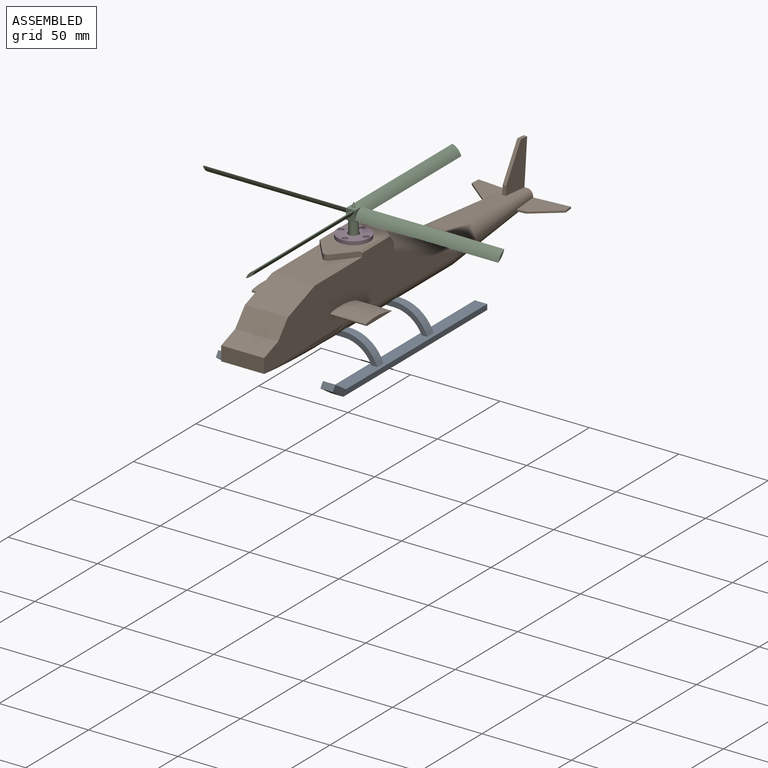
[diagram: assembled view]
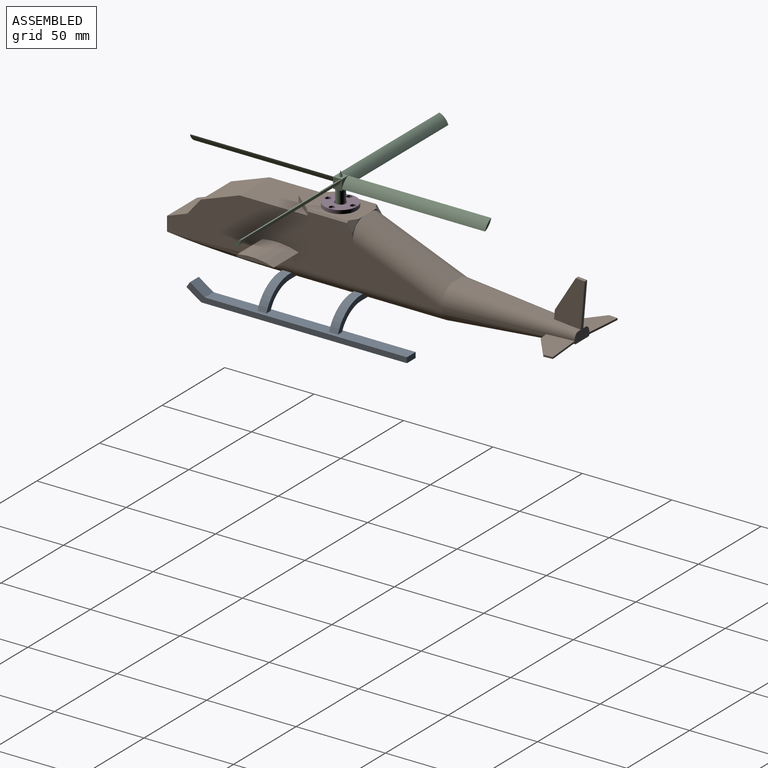
[diagram: assembled view, second angle]
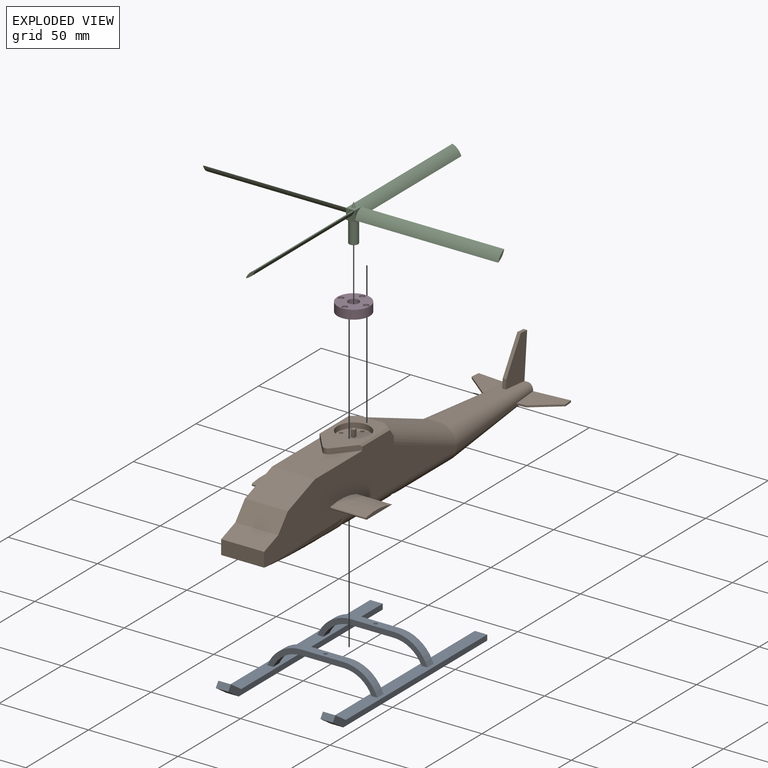
[diagram: exploded view]
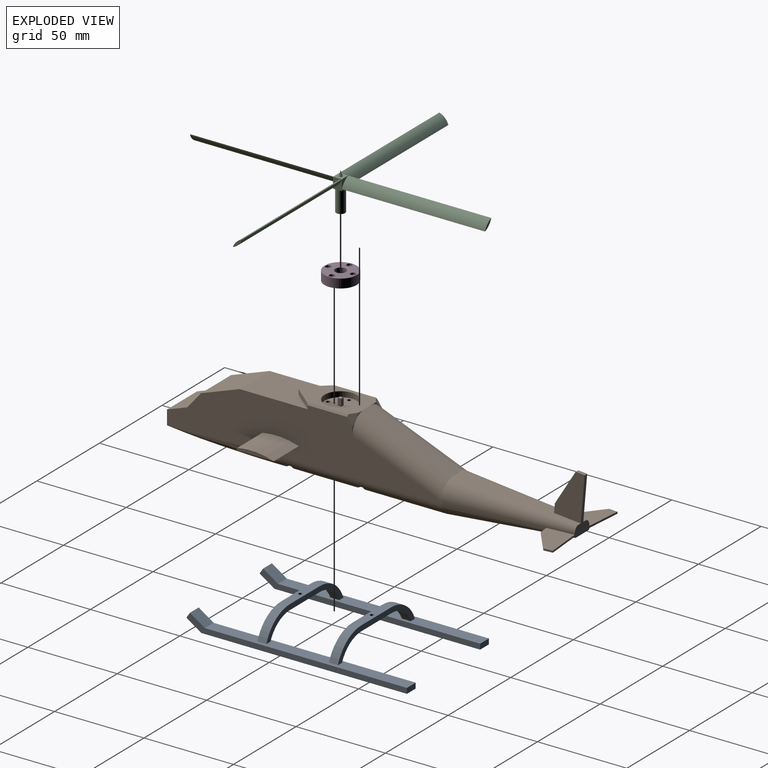
[diagram: exploded view, second angle]
ASSEMBLY  parts=4 mates=3
PART A: 38 faces, bbox 65.5x123.3x16 mm
  f0: cylinder r=20mm len=18.74mm, axis (0,-1,0), area 121.3mm2, adj f1,f6,f7,f8
  f1: plane 24x5mm, normal (0,0,1), area 116.9mm2, adj f0,f2,f6,f7,f35
  f2: cylinder r=20mm len=18.74mm, axis (0,-1,0), area 121.3mm2, adj f1,f6,f7,f9
  f3: cylinder r=17mm len=15.49mm, axis (0,-1,0), area 97.4mm2, adj f4,f6,f7,f9
  f4: plane 24x5mm, normal (0,0,-1), area 112.9mm2, adj f3,f5,f6,f7,f37
  f5: cylinder r=17mm len=15.49mm, axis (0,-1,0), area 97.4mm2, adj f4,f6,f7,f8
  f6: plane 61.47x13mm, normal (0,1,0), area 203.3mm2, adj f0,f1,f2,f3,f4,f5,f8,f9
  f7: plane 61.47x13mm, normal (0,-1,0), area 203.3mm2, adj f0,f1,f2,f3,f4,f5,f8,f9
  f8: plane 113x7mm, normal (0,0,1), area 758.6mm2, adj f0,f5,f6,f7,f10,f15,f16,f17
  f9: plane 113x7mm, normal (0,0,1), area 758.6mm2, adj f2,f3,f6,f7,f12,f13,f16,f17
  f10: cylinder r=20mm len=18.74mm, axis (0,1,0), area 121.3mm2, adj f8,f11,f16,f17
  f11: plane 24x5mm, normal (0,0,1), area 116.9mm2, adj f10,f12,f16,f17,f32
  f12: cylinder r=20mm len=18.74mm, axis (0,1,0), area 121.3mm2, adj f9,f11,f16,f17
  f13: cylinder r=17mm len=15.49mm, axis (0,1,0), area 97.4mm2, adj f9,f14,f16,f17
  f14: plane 24x5mm, normal (0,0,-1), area 112.9mm2, adj f13,f15,f16,f17,f34
  f15: cylinder r=17mm len=15.49mm, axis (0,1,0), area 97.4mm2, adj f8,f14,f16,f17
  f16: plane 61.47x13mm, normal (0,-1,0), area 203.3mm2, adj f8,f9,f10,f11,f12,f13,f14,f15
  f17: plane 61.47x13mm, normal (0,1,0), area 203.3mm2, adj f8,f9,f10,f11,f12,f13,f14,f15
  f18: plane 123.32x8.55mm, normal (-1,0,0), area 378.1mm2, adj f8,f19,f21,f26,f27,f28
  f19: plane 115x7mm, normal (0,0,-1), area 805mm2, adj f18,f20,f21,f26
  f20: plane 123.32x8.55mm, normal (1,0,0), area 378.1mm2, adj f8,f19,f21,f26,f27,f28
  f21: plane 7x3mm, normal (0,1,0), area 21mm2, adj f8,f18,f19,f20
  f22: plane 115x7mm, normal (0,0,-1), area 805mm2, adj f23,f24,f25,f30
  f23: plane 123.32x8.55mm, normal (1,0,0), area 378.1mm2, adj f9,f22,f25,f29,f30,f31
  f24: plane 123.32x8.55mm, normal (-1,0,0), area 378.1mm2, adj f9,f22,f25,f29,f30,f31
  f25: plane 7x3mm, normal (0,1,0), area 21mm2, adj f9,f22,f23,f24
  f26: plane 8.32x7mm, normal (0,-0.55,-0.83), area 70mm2, adj f18,f19,f20,f28
  f27: plane 8.32x7mm, normal (0,0.55,0.83), area 70mm2, adj f8,f18,f20,f28
  f28: plane 7x3mm, normal (0,-0.83,0.55), area 25.2mm2, adj f18,f20,f26,f27
  f29: plane 8.32x7mm, normal (0,0.55,0.83), area 70mm2, adj f9,f23,f24,f31
  f30: plane 8.32x7mm, normal (0,-0.55,-0.83), area 70mm2, adj f22,f23,f24,f31
  f31: plane 7x3mm, normal (0,-0.83,0.55), area 25.2mm2, adj f23,f24,f29,f30
  f32: cylinder r=1mm len=2mm, axis (0,0,-1), area 12.6mm2, adj f11,f33
  f33: plane 3x3mm, normal (0,0,-1), area 3.9mm2, adj f32,f34
  f34: cylinder r=1.5mm len=3mm, axis (0,0,-1), area 9.4mm2, adj f14,f33
  f35: cylinder r=1mm len=2mm, axis (0,0,-1), area 12.6mm2, adj f1,f36
  f36: plane 3x3mm, normal (0,0,-1), area 3.9mm2, adj f35,f37
  f37: cylinder r=1.5mm len=3mm, axis (0,0,-1), area 9.4mm2, adj f4,f36
PART B: 87 faces, bbox 65.5x239.2x40.5 mm
  f0: plane 35x10mm, normal (0,0,-1), area 350mm2, adj f2,f3,f64,f68
  f1: plane 45x10mm, normal (0,0,-1), area 450mm2, adj f2,f3,f33,f65
  f2: cylinder r=7mm len=90mm, axis (0,-1,0), area 922.2mm2, adj f0,f1,f15,f16,f32,f64,f65,f66
  f3: cylinder r=7mm len=90mm, axis (0,-1,0), area 922.2mm2, adj f0,f1,f26,f27,f34,f64,f65,f66
  f4: plane 70x6.12mm, normal (-1,0.09,0), area 76.8mm2, adj f26,f34,f35,f37,f58,f61
  f5: plane 70x6.12mm, normal (0,0.09,1), area 391.6mm2, adj f23,f35,f36,f37,f49,f50,f51
  f6: plane 70x6.12mm, normal (1,0.09,0), area 76.8mm2, adj f15,f32,f36,f37,f42,f45
  f7: plane 38.05x24mm, normal (0,0,1), area 742.4mm2, adj f9,f15,f17,f18,f26,f28
  f8: plane 18x18mm, normal (0,0,1), area 237.9mm2, adj f19,f75,f77,f79,f81,f82,f83,f84
  f9: plane 24x21.61mm, normal (0,-0.34,0.94), area 552mm2, adj f7,f10,f15,f26
  f10: plane 24x9.19mm, normal (0,-0.77,0.64), area 288mm2, adj f9,f11,f15,f26
  f11: plane 24x11.28mm, normal (0,-0.34,0.94), area 288mm2, adj f10,f12,f15,f26
  f12: plane 24x8mm, normal (0,-1,0), area 192mm2, adj f11,f13,f15,f26
  f13: cylinder r=350mm len=63.65mm, axis (-1,0,0), area 1088.2mm2, adj f12,f16,f27,f67
  f14: plane 11.21x10.51mm, normal (0,1,0), area 5mm2, adj f15,f20,f22,f24
  f15: plane 153.65x31.31mm, normal (1,0,0), area 3126.9mm2, adj f2,f6,f7,f9,f10,f11,f12,f14
  f16: bspline ~63.65x7mm, area 424.1mm2, adj f2,f13,f15,f67
  f17: cylinder r=2.5mm len=3.84mm, axis (0,0,-1), area 13.1mm2, adj f7,f18,f20,f28
  f18: plane 12.1x10.08mm, normal (0.77,-0.64,0), area 46.5mm2, adj f7,f15,f17,f20,f21
  f19: cylinder r=9mm len=18mm, axis (0,0,-1), area 169.6mm2, adj f8,f20
  f20: plane 38x22mm, normal (0,0,1), area 452.4mm2, adj f14,f17,f18,f19,f21,f22,f23,f25
  f21: plane 23.2x1mm, normal (0.71,0,0.71), area 32mm2, adj f15,f18,f20,f22
  f22: plane 5.24x5.24mm, normal (0.5,0.71,0.5), area 18.7mm2, adj f14,f15,f20,f21
  f23: plane 50x20mm, normal (0,0.37,0.93), area 323.1mm2, adj f5,f20,f24,f31
  f24: cylinder r=9mm len=56.69mm, axis (0,0.93,-0.37), area 761.3mm2, adj f14,f15,f23,f36
  f25: plane 11.21x10.51mm, normal (0,1,0), area 5mm2, adj f20,f26,f30,f31
  f26: plane 153.65x31.31mm, normal (-1,0,0), area 3126.9mm2, adj f3,f4,f7,f9,f10,f11,f12,f25
  f27: bspline ~63.65x7mm, area 424.1mm2, adj f3,f13,f26,f67
  f28: plane 12.1x10.08mm, normal (-0.77,-0.64,0), area 46.5mm2, adj f7,f17,f20,f26,f29
  f29: plane 23.2x1mm, normal (-0.71,0,0.71), area 32mm2, adj f20,f26,f28,f30
  f30: plane 5.24x5.24mm, normal (-0.5,0.71,0.5), area 18.7mm2, adj f20,f25,f26,f29
  f31: cylinder r=9mm len=56.69mm, axis (0,0.93,-0.37), area 761.3mm2, adj f23,f25,f26,f35
  f32: cone r=7mm half-angle=5deg, axis (0,-1,0), area 434.6mm2, adj f2,f6,f33,f37,f43
  f33: plane 70x10mm, normal (0,0.09,-1), area 702.7mm2, adj f1,f32,f34,f37
  f34: cone r=7mm half-angle=5deg, axis (0,-1,0), area 434.6mm2, adj f3,f4,f33,f37,f59
  f35: bspline ~84x12.21mm, area 694mm2, adj f4,f5,f31,f37
  f36: bspline ~84x12.21mm, area 694mm2, adj f5,f6,f24,f37
  f37: plane 12.56x6.56mm, normal (0,1,0), area 62.8mm2, adj f4,f5,f6,f32,f33,f34,f35,f36
  f38: cylinder r=0.7mm len=20mm, axis (-1,0,0), area 41.4mm2, adj f15,f39,f40,f41
  f39: plane 20x20mm, normal (0,0,-1), area 400mm2, adj f15,f38,f40,f41
  f40: cylinder r=40mm len=20.13mm, axis (-1,0,0), area 408mm2, adj f15,f38,f39,f41
  f41: plane 20.7x2.08mm, normal (1,0,0), area 32mm2, adj f38,f39,f40
  f42: plane 4.98x1mm, normal (0.09,-1,0), area 5mm2, adj f6,f43,f45,f47
  f43: plane 20.36x16.69mm, normal (0,0,-1), area 225mm2, adj f32,f42,f44,f46,f47
  f44: plane 19.92x1.74mm, normal (-0.09,1,0), area 20mm2, adj f37,f43,f45,f46
  f45: plane 20.36x16.69mm, normal (0,0,1), area 225mm2, adj f6,f42,f44,f46,f47
  f46: plane 4.98x1mm, normal (1,0.09,0), area 5mm2, adj f43,f44,f45,f47
  f47: plane 14.07x11.27mm, normal (0.63,-0.78,0), area 18mm2, adj f42,f43,f45,f46
  f48: plane 24.91x2.18mm, normal (0,1,-0.09), area 50mm2, adj f37,f49,f51,f52
  f49: plane 25.34x17.12mm, normal (-1,0,0), area 275mm2, adj f5,f48,f50,f52,f53
  f50: plane 4.98x2mm, normal (0,-1,0.09), area 10mm2, adj f5,f49,f51,f53
  f51: plane 25.34x17.12mm, normal (1,0,0), area 275mm2, adj f5,f48,f50,f52,f53
  f52: plane 4.98x2mm, normal (0,0.09,1), area 10mm2, adj f48,f49,f51,f53
  f53: plane 19.05x11.71mm, normal (0,-0.85,0.52), area 44.7mm2, adj f49,f50,f51,f52
  f54: plane 20.7x2.08mm, normal (-1,0,0), area 32mm2, adj f55,f56,f57
  f55: cylinder r=40mm len=20.13mm, axis (1,0,0), area 408mm2, adj f26,f54,f56,f57
  f56: plane 20x20mm, normal (0,0,-1), area 400mm2, adj f26,f54,f55,f57
  f57: cylinder r=0.7mm len=20mm, axis (1,0,0), area 41.4mm2, adj f26,f54,f55,f56
  f58: plane 4.98x1mm, normal (-0.09,-1,0), area 5mm2, adj f4,f59,f61,f63
  f59: plane 20.36x16.69mm, normal (0,0,-1), area 225mm2, adj f34,f58,f60,f62,f63
  f60: plane 19.92x1.74mm, normal (0.09,1,0), area 20mm2, adj f37,f59,f61,f62
  f61: plane 20.36x16.69mm, normal (0,0,1), area 225mm2, adj f4,f58,f60,f62,f63
  f62: plane 4.98x1mm, normal (-1,0.09,0), area 5mm2, adj f59,f60,f61,f63
  f63: plane 14.07x11.27mm, normal (-0.63,-0.78,0), area 18mm2, adj f58,f59,f61,f62
  f64: plane 21.49x3mm, normal (0,1,0), area 54.2mm2, adj f0,f2,f3,f66
  f65: plane 21.49x3mm, normal (0,-1,0), area 54.2mm2, adj f1,f2,f3,f66
  f66: plane 21.49x5mm, normal (0,0,-1), area 104.3mm2, adj f2,f3,f64,f65,f73
  f67: plane 21.75x3.26mm, normal (0,1,0), area 54.2mm2, adj f13,f16,f27,f69
  f68: plane 21.49x3mm, normal (0,-1,0), area 54.2mm2, adj f0,f2,f3,f69
  f69: plane 21.49x5mm, normal (0,0,-1), area 104.3mm2, adj f2,f3,f67,f68,f71
  f70: cone r=0mm half-angle=59deg, axis (0,0,-1), area 3.7mm2, adj f71
  f71: cylinder r=1mm len=4mm, axis (0,0,-1), area 25.1mm2, adj f69,f70
  f72: cone r=0mm half-angle=59deg, axis (0,0,-1), area 3.7mm2, adj f73
  f73: cylinder r=1mm len=4mm, axis (0,0,-1), area 25.1mm2, adj f66,f72
  f74: cone r=0mm half-angle=59deg, axis (0,0,1), area 3.7mm2, adj f75
  f75: cylinder r=1mm len=4mm, axis (0,0,1), area 25.1mm2, adj f8,f74
  f76: cone r=0mm half-angle=59deg, axis (0,0,1), area 3.7mm2, adj f77
  f77: cylinder r=1mm len=4mm, axis (0,0,1), area 25.1mm2, adj f8,f76
  f78: cone r=0mm half-angle=59deg, axis (0,0,1), area 3.7mm2, adj f79
  f79: cylinder r=1mm len=4mm, axis (0,0,1), area 25.1mm2, adj f8,f78
  f80: cone r=0mm half-angle=59deg, axis (0,0,1), area 3.7mm2, adj f81
  f81: cylinder r=1mm len=4mm, axis (0,0,1), area 25.1mm2, adj f8,f80
  f82: plane 4x2mm, normal (0,1,0), area 8mm2, adj f8,f83,f85,f86
  f83: plane 4x2mm, normal (-1,0,0), area 8mm2, adj f8,f82,f84,f86
  f84: plane 4x2mm, normal (0,-1,0), area 8mm2, adj f8,f83,f85,f86
  f85: plane 4x2mm, normal (1,0,0), area 8mm2, adj f8,f82,f84,f86
  f86: plane 2x2mm, normal (0,0,1), area 4mm2, adj f82,f83,f84,f85
PART C: 33 faces, bbox 165x165x21 mm
  f0: plane 5x5mm, normal (0,0,-1), area 15.6mm2, adj f18,f28,f29,f30,f31
  f1: plane 2.5x2.5mm, normal (0,0,-1), area 1.3mm2, adj f4,f5,f18
  f2: plane 2.5x2.5mm, normal (0,0,-1), area 1.3mm2, adj f4,f11,f18
  f3: plane 2.5x2.5mm, normal (0,0,-1), area 1.3mm2, adj f7,f11,f18
  f4: plane 6x5mm, normal (0,1,0), area 13.6mm2, adj f1,f2,f5,f9,f11,f27
  f5: plane 6x5mm, normal (-1,0,0), area 13.6mm2, adj f1,f4,f7,f10,f13,f23
  f6: plane 5x5mm, normal (1,0,0), area 8.6mm2, adj f7,f12,f20
  f7: plane 6x5mm, normal (0,-1,0), area 13.6mm2, adj f3,f5,f6,f11,f13,f14
  f8: plane 5x5mm, normal (0,1,0), area 8.6mm2, adj f11,f12,f26
  f9: plane 5x5mm, normal (-1,0,0), area 8.6mm2, adj f4,f12,f24
  f10: plane 5x5mm, normal (0,-1,0), area 8.6mm2, adj f5,f12,f15
  f11: plane 6x5mm, normal (1,0,0), area 13.6mm2, adj f2,f3,f4,f7,f8,f21
  f12: plane 5x5mm, normal (0,0,1), area 21.9mm2, adj f6,f8,f9,f10,f17
  f13: plane 2.5x2.5mm, normal (0,0,-1), area 1.3mm2, adj f5,f7,f18
  f14: cylinder r=8mm len=80mm, axis (0,1,0), area 585.9mm2, adj f7,f15,f16
  f15: cylinder r=8mm len=80mm, axis (0,1,0), area 585.9mm2, adj f10,f14,f16
  f16: plane 5x5mm, normal (0,-1,0), area 7.8mm2, adj f14,f15
  f17: cone r=1mm half-angle=18.4deg, axis (0,0,-1), area 9.9mm2, adj f12
  f18: cylinder r=2.5mm len=12mm, axis (0,0,1), area 188.5mm2, adj f0,f1,f2,f3,f13
  f19: plane 5x5mm, normal (1,0,0), area 7.8mm2, adj f20,f21
  f20: cylinder r=8mm len=80mm, axis (-1,0,0), area 585.9mm2, adj f6,f19,f21
  f21: cylinder r=8mm len=80mm, axis (-1,0,0), area 585.9mm2, adj f11,f19,f20
  f22: plane 5x5mm, normal (-1,0,0), area 7.8mm2, adj f23,f24
  f23: cylinder r=8mm len=80mm, axis (1,0,0), area 585.9mm2, adj f5,f22,f24
  f24: cylinder r=8mm len=80mm, axis (1,0,0), area 585.9mm2, adj f9,f22,f23
  f25: plane 5x5mm, normal (0,1,0), area 7.8mm2, adj f26,f27
  f26: cylinder r=8mm len=80mm, axis (0,-1,0), area 585.9mm2, adj f8,f25,f27
  f27: cylinder r=8mm len=80mm, axis (0,-1,0), area 585.9mm2, adj f4,f25,f26
  f28: plane 4x2mm, normal (0,1,0), area 8mm2, adj f0,f29,f31,f32
  f29: plane 4x2mm, normal (1,0,0), area 8mm2, adj f0,f28,f30,f32
  f30: plane 4x2mm, normal (0,-1,0), area 8mm2, adj f0,f29,f31,f32
  f31: plane 4x2mm, normal (-1,0,0), area 8mm2, adj f0,f28,f30,f32
  f32: plane 2x2mm, normal (0,0,-1), area 4mm2, adj f28,f29,f30,f31
PART D: 18 faces, bbox 18x18x5 mm
  f0: cylinder r=9mm len=18mm, axis (0,0,-1), area 282.7mm2, adj f1,f2
  f1: plane 18x18mm, normal (0,0,1), area 197.9mm2, adj f0,f3,f8,f11,f14,f17
  f2: plane 18x18mm, normal (0,0,-1), area 163.4mm2, adj f0,f4,f6,f9,f12,f15
  f3: cylinder r=3mm len=6mm, axis (0,0,-1), area 37.7mm2, adj f1,f5
  f4: cylinder r=5mm len=10mm, axis (0,0,-1), area 94.2mm2, adj f2,f5
  f5: plane 10x10mm, normal (0,0,-1), area 50.3mm2, adj f3,f4
  f6: cylinder r=1mm len=4mm, axis (0,0,1), area 25.1mm2, adj f2,f7
  f7: plane 3x3mm, normal (0,0,1), area 3.9mm2, adj f6,f8
  f8: cylinder r=1.5mm len=3mm, axis (0,0,1), area 9.4mm2, adj f1,f7
  f9: cylinder r=1mm len=4mm, axis (0,0,1), area 25.1mm2, adj f2,f10
  f10: plane 3x3mm, normal (0,0,1), area 3.9mm2, adj f9,f11
  f11: cylinder r=1.5mm len=3mm, axis (0,0,1), area 9.4mm2, adj f1,f10
  f12: cylinder r=1mm len=4mm, axis (0,0,1), area 25.1mm2, adj f2,f13
  f13: plane 3x3mm, normal (0,0,1), area 3.9mm2, adj f12,f14
  f14: cylinder r=1.5mm len=3mm, axis (0,0,1), area 9.4mm2, adj f1,f13
  f15: cylinder r=1mm len=4mm, axis (0,0,1), area 25.1mm2, adj f2,f16
  f16: plane 3x3mm, normal (0,0,1), area 3.9mm2, adj f15,f17
  f17: cylinder r=1.5mm len=3mm, axis (0,0,1), area 9.4mm2, adj f1,f16
PLACE A t=(16.64,-18.43,-46.44)mm
PLACE B t=(16.64,-18.43,-46.44)mm
PLACE C rot(axis=(0,0,1),90deg) t=(16.64,-33.43,1.56)mm
PLACE D t=(16.64,-33.43,-11.44)mm
MATE revolute C.f18 <-> B.f19  axis (0,0,-1) through (16.64,-33.43,-11.44)mm
MATE fastened D.f0 <-> B.f19  axis (0,0,-1) through (16.64,-33.43,-11.44)mm
MATE fastened A.f32 <-> B.f70  axis (0,0,1) through (16.64,-55.93,-43.44)mm
